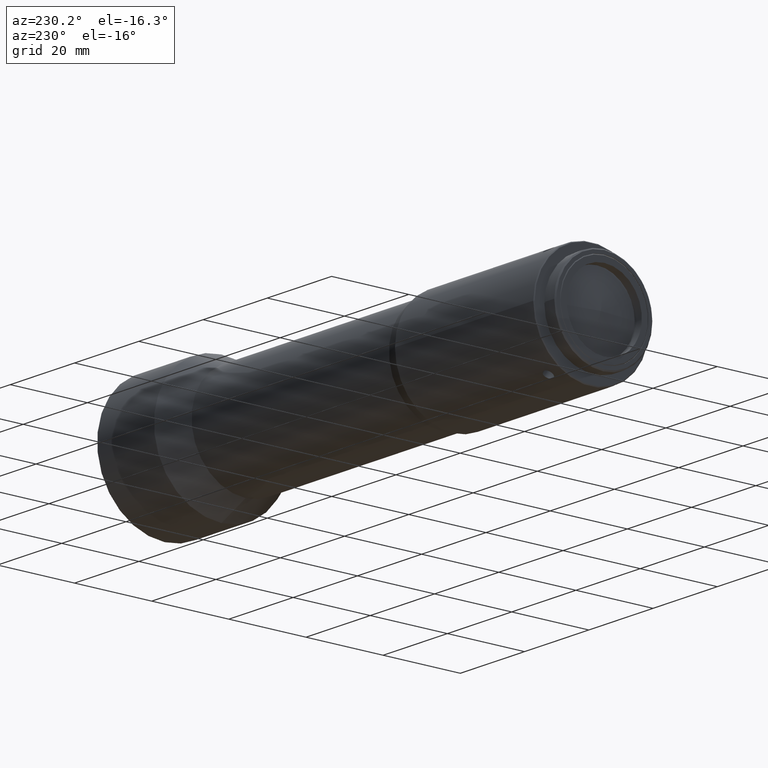
[diagram: clean part render]
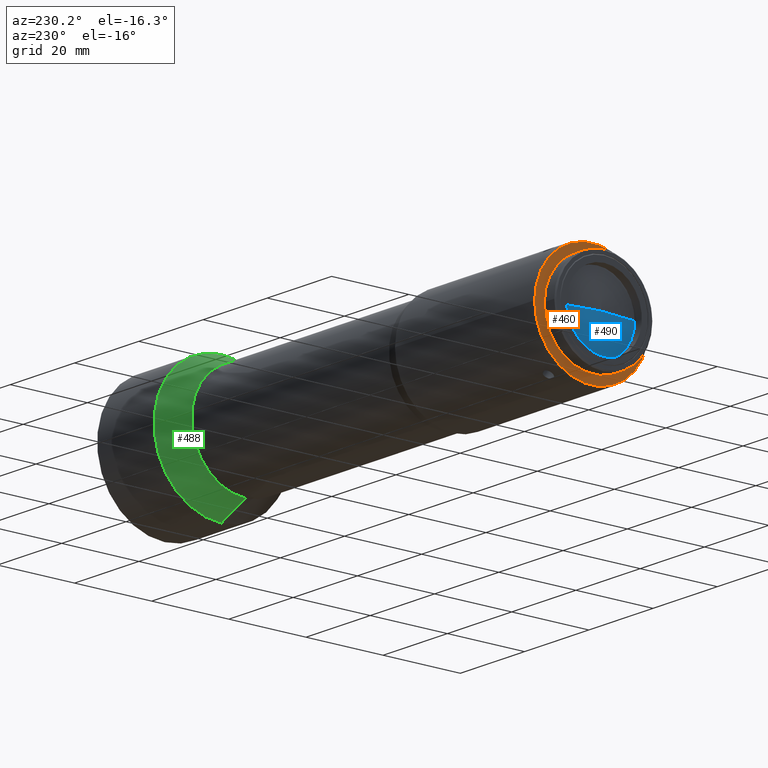
[diagram: same view with three faces highlighted in distinct colors, each labeled with its STEP entity id]
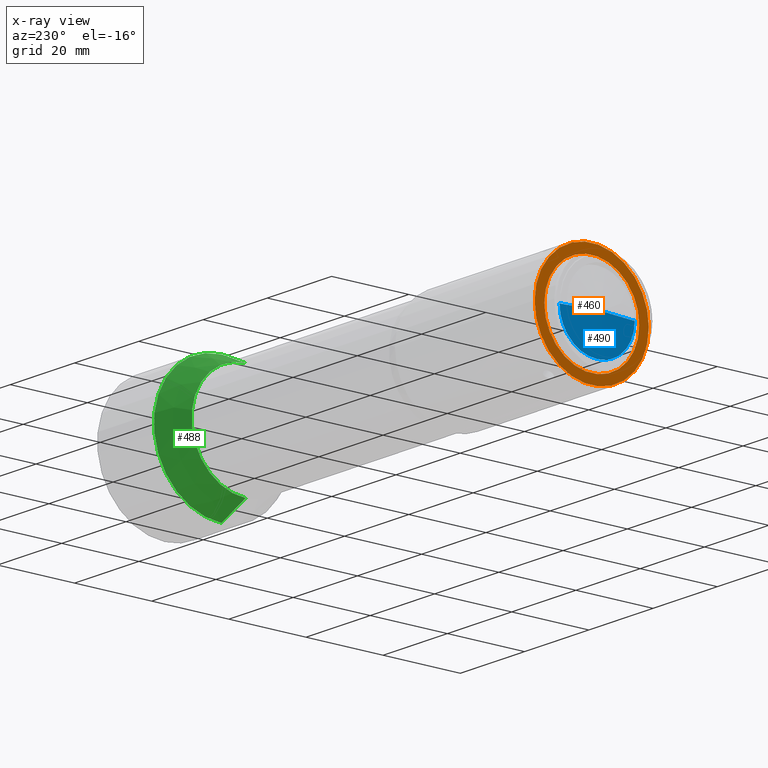
[diagram: x-ray of the same camera — body ghosted, the three highlighted faces saturated]
A machine part, auxiliary view with three faces highlighted in distinct colors.
The next image is the same camera in x-ray (body ghosted, the three faces saturated) — at least one of them is partly hidden behind the body in this view.
Their STEP definitions:

[orange] entity #460 — the highlighted planar face has unit normal (1, -0, 0).
#42 = EDGE_CURVE ( 'NONE', #1351, #1366, #265, .T. ) ;
#46 = EDGE_CURVE ( 'NONE', #1211, #1197, #263, .T. ) ;
#55 = EDGE_CURVE ( 'NONE', #1366, #1351, #255, .T. ) ;
#183 = FACE_OUTER_BOUND ( 'NONE', #1331, .T. ) ;
#188 = FACE_BOUND ( 'NONE', #1332, .T. ) ;
#205 = CIRCLE ( 'NONE', #341, 14.80000000000004200 ) ;
#255 = CIRCLE ( 'NONE', #362, 12.30000000000000100 ) ;
#263 = CIRCLE ( 'NONE', #322, 14.80000000000004200 ) ;
#265 = CIRCLE ( 'NONE', #323, 12.30000000000000100 ) ;
#322 = AXIS2_PLACEMENT_3D ( 'NONE', #1156, #1158, #1160 ) ;
#323 = AXIS2_PLACEMENT_3D ( 'NONE', #1054, #1055, #1061 ) ;
#341 = AXIS2_PLACEMENT_3D ( 'NONE', #696, #685, #709 ) ;
#362 = AXIS2_PLACEMENT_3D ( 'NONE', #565, #570, #571 ) ;
#419 = AXIS2_PLACEMENT_3D ( 'NONE', #800, #517, #789 ) ;
#431 = EDGE_CURVE ( 'NONE', #1197, #1211, #205, .T. ) ;
#460 = ADVANCED_FACE ( 'NONE', ( #188, #183 ), #937, .F. ) ;
#517 = DIRECTION ( 'NONE',  ( 1.000000000000000000, -0.0000000000000000000, 0.0000000000000000000 ) ) ;
#565 = CARTESIAN_POINT ( 'NONE',  ( -100.9300000000000100, -1.605751360464077900E-039, 0.0000000000000000000 ) ) ;
#570 = DIRECTION ( 'NONE',  ( -1.000000000000000000, 5.641377157648153900E-016, 0.0000000000000000000 ) ) ;
#571 = DIRECTION ( 'NONE',  ( -1.128275431529630600E-015, -1.000000000000000000, 0.0000000000000000000 ) ) ;
#666 = CARTESIAN_POINT ( 'NONE',  ( -100.9300000000000200, -12.30000000000000100, 0.0000000000000000000 ) ) ;
#681 = CARTESIAN_POINT ( 'NONE',  ( -100.9299999999999900, 12.30000000000000100, 1.506315562951244400E-015 ) ) ;
#685 = DIRECTION ( 'NONE',  ( -1.000000000000000000, 4.688441826964344300E-016, -0.0000000000000000000 ) ) ;
#696 = CARTESIAN_POINT ( 'NONE',  ( -100.9299999999999600, -1.951956024775217600E-029, 0.0000000000000000000 ) ) ;
#708 = CARTESIAN_POINT ( 'NONE',  ( -100.9299999999999500, 14.80000000000004200, 0.0000000000000000000 ) ) ;
#709 = DIRECTION ( 'NONE',  ( 9.376883653928661000E-016, 1.000000000000000000, 0.0000000000000000000 ) ) ;
#723 = CARTESIAN_POINT ( 'NONE',  ( -100.9299999999999800, -14.80000000000004200, 1.824723730729558600E-015 ) ) ;
#789 = DIRECTION ( 'NONE',  ( 0.0000000000000000000, 0.0000000000000000000, -1.000000000000000000 ) ) ;
#800 = CARTESIAN_POINT ( 'NONE',  ( -100.9300000000000100, -14.97760000000000100, 14.97760000000000100 ) ) ;
#937 = PLANE ( 'NONE',  #419 ) ;
#1054 = CARTESIAN_POINT ( 'NONE',  ( -100.9300000000000100, -1.605751360464077900E-039, 0.0000000000000000000 ) ) ;
#1055 = DIRECTION ( 'NONE',  ( -1.000000000000000000, 5.641377157648153900E-016, 0.0000000000000000000 ) ) ;
#1061 = DIRECTION ( 'NONE',  ( -1.128275431529630600E-015, -1.000000000000000000, 0.0000000000000000000 ) ) ;
#1156 = CARTESIAN_POINT ( 'NONE',  ( -100.9299999999999600, -1.951956024775217600E-029, 0.0000000000000000000 ) ) ;
#1158 = DIRECTION ( 'NONE',  ( -1.000000000000000000, 4.688441826964344300E-016, -0.0000000000000000000 ) ) ;
#1160 = DIRECTION ( 'NONE',  ( 9.376883653928661000E-016, 1.000000000000000000, 0.0000000000000000000 ) ) ;
#1197 = VERTEX_POINT ( 'NONE', #723 ) ;
#1211 = VERTEX_POINT ( 'NONE', #708 ) ;
#1331 = EDGE_LOOP ( 'NONE', ( #1527, #1427 ) ) ;
#1332 = EDGE_LOOP ( 'NONE', ( #1525, #1406 ) ) ;
#1351 = VERTEX_POINT ( 'NONE', #681 ) ;
#1366 = VERTEX_POINT ( 'NONE', #666 ) ;
#1406 = ORIENTED_EDGE ( 'NONE', *, *, #42, .F. ) ;
#1427 = ORIENTED_EDGE ( 'NONE', *, *, #431, .T. ) ;
#1525 = ORIENTED_EDGE ( 'NONE', *, *, #55, .F. ) ;
#1527 = ORIENTED_EDGE ( 'NONE', *, *, #46, .T. ) ;

[blue] entity #490 — the highlighted conical surface has half-angle 83.22 deg.
#28 = EDGE_CURVE ( 'NONE', #1191, #1201, #284, .T. ) ;
#30 = EDGE_CURVE ( 'NONE', #1355, #1236, #277, .T. ) ;
#31 = EDGE_CURVE ( 'NONE', #1355, #1191, #280, .T. ) ;
#33 = EDGE_CURVE ( 'NONE', #1201, #1236, #273, .T. ) ;
#118 = CONICAL_SURFACE ( 'NONE', #391, 8411.698456004931400, 1.452469621039133700 ) ;
#135 = FACE_OUTER_BOUND ( 'NONE', #1310, .T. ) ;
#273 = CIRCLE ( 'NONE', #317, 9.749999999777742200 ) ;
#274 = VECTOR ( 'NONE', #988, 1000.000000000000000 ) ;
#276 = VECTOR ( 'NONE', #987, 999.9999999999998900 ) ;
#277 = LINE ( 'NONE', #980, #276 ) ;
#280 = LINE ( 'NONE', #979, #274 ) ;
#284 = CIRCLE ( 'NONE', #413, 9.749999999777742200 ) ;
#317 = AXIS2_PLACEMENT_3D ( 'NONE', #999, #1000, #1004 ) ;
#391 = AXIS2_PLACEMENT_3D ( 'NONE', #818, #1010, #1078 ) ;
#413 = AXIS2_PLACEMENT_3D ( 'NONE', #983, #984, #986 ) ;
#490 = ADVANCED_FACE ( 'NONE', ( #135 ), #118, .T. ) ;
#674 = CARTESIAN_POINT ( 'NONE',  ( -103.7473914410000200, -2.574841994641382500E-024, 2.341876692568689600E-014 ) ) ;
#698 = CARTESIAN_POINT ( 'NONE',  ( -102.5882914030000000, 9.749999999999934300, 0.0000000000000000000 ) ) ;
#719 = CARTESIAN_POINT ( 'NONE',  ( -102.5882914030000000, 0.0000000000000000000, -9.749999999777744000 ) ) ;
#729 = CARTESIAN_POINT ( 'NONE',  ( -102.5882914030000000, -9.750000000000051500, 1.194030629168675800E-015 ) ) ;
#818 = CARTESIAN_POINT ( 'NONE',  ( 896.2526085590000100, -7.116814260417670000E-013, 0.0000000000000000000 ) ) ;
#979 = CARTESIAN_POINT ( 'NONE',  ( -103.7473914410000200, 0.0000000000000000000, 0.0000000000000000000 ) ) ;
#980 = CARTESIAN_POINT ( 'NONE',  ( -103.7473914410000200, 0.0000000000000000000, 0.0000000000000000000 ) ) ;
#983 = CARTESIAN_POINT ( 'NONE',  ( -102.5882914030000000, 0.0000000000000000000, 0.0000000000000000000 ) ) ;
#984 = DIRECTION ( 'NONE',  ( 1.000000000000000000, 0.0000000000000000000, 0.0000000000000000000 ) ) ;
#986 = DIRECTION ( 'NONE',  ( 0.0000000000000000000, -0.3537059737516527500, -0.9353566614572194100 ) ) ;
#987 = DIRECTION ( 'NONE',  ( 0.1180507794962668600, 0.9930075596189205100, 0.0000000000000000000 ) ) ;
#988 = DIRECTION ( 'NONE',  ( 0.1180507794962654300, -0.9930075596189206200, 1.216083529416435500E-016 ) ) ;
#999 = CARTESIAN_POINT ( 'NONE',  ( -102.5882914030000000, 0.0000000000000000000, 0.0000000000000000000 ) ) ;
#1000 = DIRECTION ( 'NONE',  ( 1.000000000000000000, 0.0000000000000000000, 0.0000000000000000000 ) ) ;
#1004 = DIRECTION ( 'NONE',  ( 0.0000000000000000000, -0.3537059737516527500, -0.9353566614572194100 ) ) ;
#1010 = DIRECTION ( 'NONE',  ( 1.000000000000000000, -7.116814260417670500E-016, 0.0000000000000000000 ) ) ;
#1078 = DIRECTION ( 'NONE',  ( 7.127222123251455000E-016, 1.000000000000000000, 0.0000000000000000000 ) ) ;
#1191 = VERTEX_POINT ( 'NONE', #729 ) ;
#1201 = VERTEX_POINT ( 'NONE', #719 ) ;
#1236 = VERTEX_POINT ( 'NONE', #698 ) ;
#1310 = EDGE_LOOP ( 'NONE', ( #1536, #1521, #1420, #1477 ) ) ;
#1355 = VERTEX_POINT ( 'NONE', #674 ) ;
#1420 = ORIENTED_EDGE ( 'NONE', *, *, #33, .F. ) ;
#1477 = ORIENTED_EDGE ( 'NONE', *, *, #28, .F. ) ;
#1521 = ORIENTED_EDGE ( 'NONE', *, *, #30, .T. ) ;
#1536 = ORIENTED_EDGE ( 'NONE', *, *, #31, .F. ) ;

[green] entity #488 — the highlighted conical surface has half-angle 25 deg.
#61 = EDGE_CURVE ( 'NONE', #1513, #1274, #250, .T. ) ;
#122 = CONICAL_SURFACE ( 'NONE', #403, 14.00000000000000000, 0.4363323129875321100 ) ;
#131 = FACE_OUTER_BOUND ( 'NONE', #1298, .T. ) ;
#194 = VECTOR ( 'NONE', #509, 1000.000000000000200 ) ;
#197 = LINE ( 'NONE', #932, #194 ) ;
#221 = CIRCLE ( 'NONE', #360, 17.50000000000000000 ) ;
#243 = VECTOR ( 'NONE', #642, 1000.000000000000000 ) ;
#246 = LINE ( 'NONE', #758, #243 ) ;
#250 = CIRCLE ( 'NONE', #355, 14.00000000000000000 ) ;
#313 = EDGE_CURVE ( 'NONE', #1513, #1238, #246, .T. ) ;
#355 = AXIS2_PLACEMENT_3D ( 'NONE', #595, #596, #597 ) ;
#360 = AXIS2_PLACEMENT_3D ( 'NONE', #897, #899, #736 ) ;
#403 = AXIS2_PLACEMENT_3D ( 'NONE', #1153, #1125, #1124 ) ;
#416 = EDGE_CURVE ( 'NONE', #1238, #1200, #221, .T. ) ;
#455 = EDGE_CURVE ( 'NONE', #1274, #1200, #197, .T. ) ;
#488 = ADVANCED_FACE ( 'NONE', ( #131 ), #122, .T. ) ;
#509 = DIRECTION ( 'NONE',  ( 0.9063077870413199800, 0.0000000000000000000, -0.4226182617306844000 ) ) ;
#595 = CARTESIAN_POINT ( 'NONE',  ( 6.799999999999917200, 0.0000000000000000000, 0.0000000000000000000 ) ) ;
#596 = DIRECTION ( 'NONE',  ( -1.000000000000000000, -0.0000000000000000000, -0.0000000000000000000 ) ) ;
#597 = DIRECTION ( 'NONE',  ( 5.885668936349880900E-015, 1.000000000000000000, 0.0000000000000000000 ) ) ;
#642 = DIRECTION ( 'NONE',  ( 0.9063077870413199800, 5.175581014897010600E-017, 0.4226182617306845100 ) ) ;
#650 = CARTESIAN_POINT ( 'NONE',  ( 6.799999999999917200, 0.0000000000000000000, 14.00000000000000200 ) ) ;
#678 = CARTESIAN_POINT ( 'NONE',  ( 6.799999999999917200, 1.714505518806294600E-015, -14.00000000000000000 ) ) ;
#695 = CARTESIAN_POINT ( 'NONE',  ( 14.30577422200000200, 2.143131898507868200E-015, 17.50000000000000000 ) ) ;
#720 = CARTESIAN_POINT ( 'NONE',  ( 14.30577422200000200, 0.0000000000000000000, -17.50000000000000000 ) ) ;
#736 = DIRECTION ( 'NONE',  ( 0.0000000000000000000, 0.0000000000000000000, 1.000000000000000000 ) ) ;
#758 = CARTESIAN_POINT ( 'NONE',  ( 6.799999999999998900, 1.714505518806294600E-015, 14.00000000000000000 ) ) ;
#897 = CARTESIAN_POINT ( 'NONE',  ( 14.30577422200000200, 0.0000000000000000000, 0.0000000000000000000 ) ) ;
#899 = DIRECTION ( 'NONE',  ( -1.000000000000000000, 0.0000000000000000000, 0.0000000000000000000 ) ) ;
#932 = CARTESIAN_POINT ( 'NONE',  ( 6.800000000000000700, 0.0000000000000000000, -14.00000000000000000 ) ) ;
#1124 = DIRECTION ( 'NONE',  ( 6.195440985631454100E-017, 0.0000000000000000000, -1.000000000000000000 ) ) ;
#1125 = DIRECTION ( 'NONE',  ( 1.000000000000000000, 0.0000000000000000000, 3.097720492815727700E-017 ) ) ;
#1153 = CARTESIAN_POINT ( 'NONE',  ( 6.799999999999999800, 0.0000000000000000000, 0.0000000000000000000 ) ) ;
#1200 = VERTEX_POINT ( 'NONE', #720 ) ;
#1238 = VERTEX_POINT ( 'NONE', #695 ) ;
#1274 = VERTEX_POINT ( 'NONE', #678 ) ;
#1292 = ORIENTED_EDGE ( 'NONE', *, *, #313, .T. ) ;
#1298 = EDGE_LOOP ( 'NONE', ( #1412, #1292, #1408, #1418 ) ) ;
#1408 = ORIENTED_EDGE ( 'NONE', *, *, #416, .T. ) ;
#1412 = ORIENTED_EDGE ( 'NONE', *, *, #61, .F. ) ;
#1418 = ORIENTED_EDGE ( 'NONE', *, *, #455, .F. ) ;
#1513 = VERTEX_POINT ( 'NONE', #650 ) ;